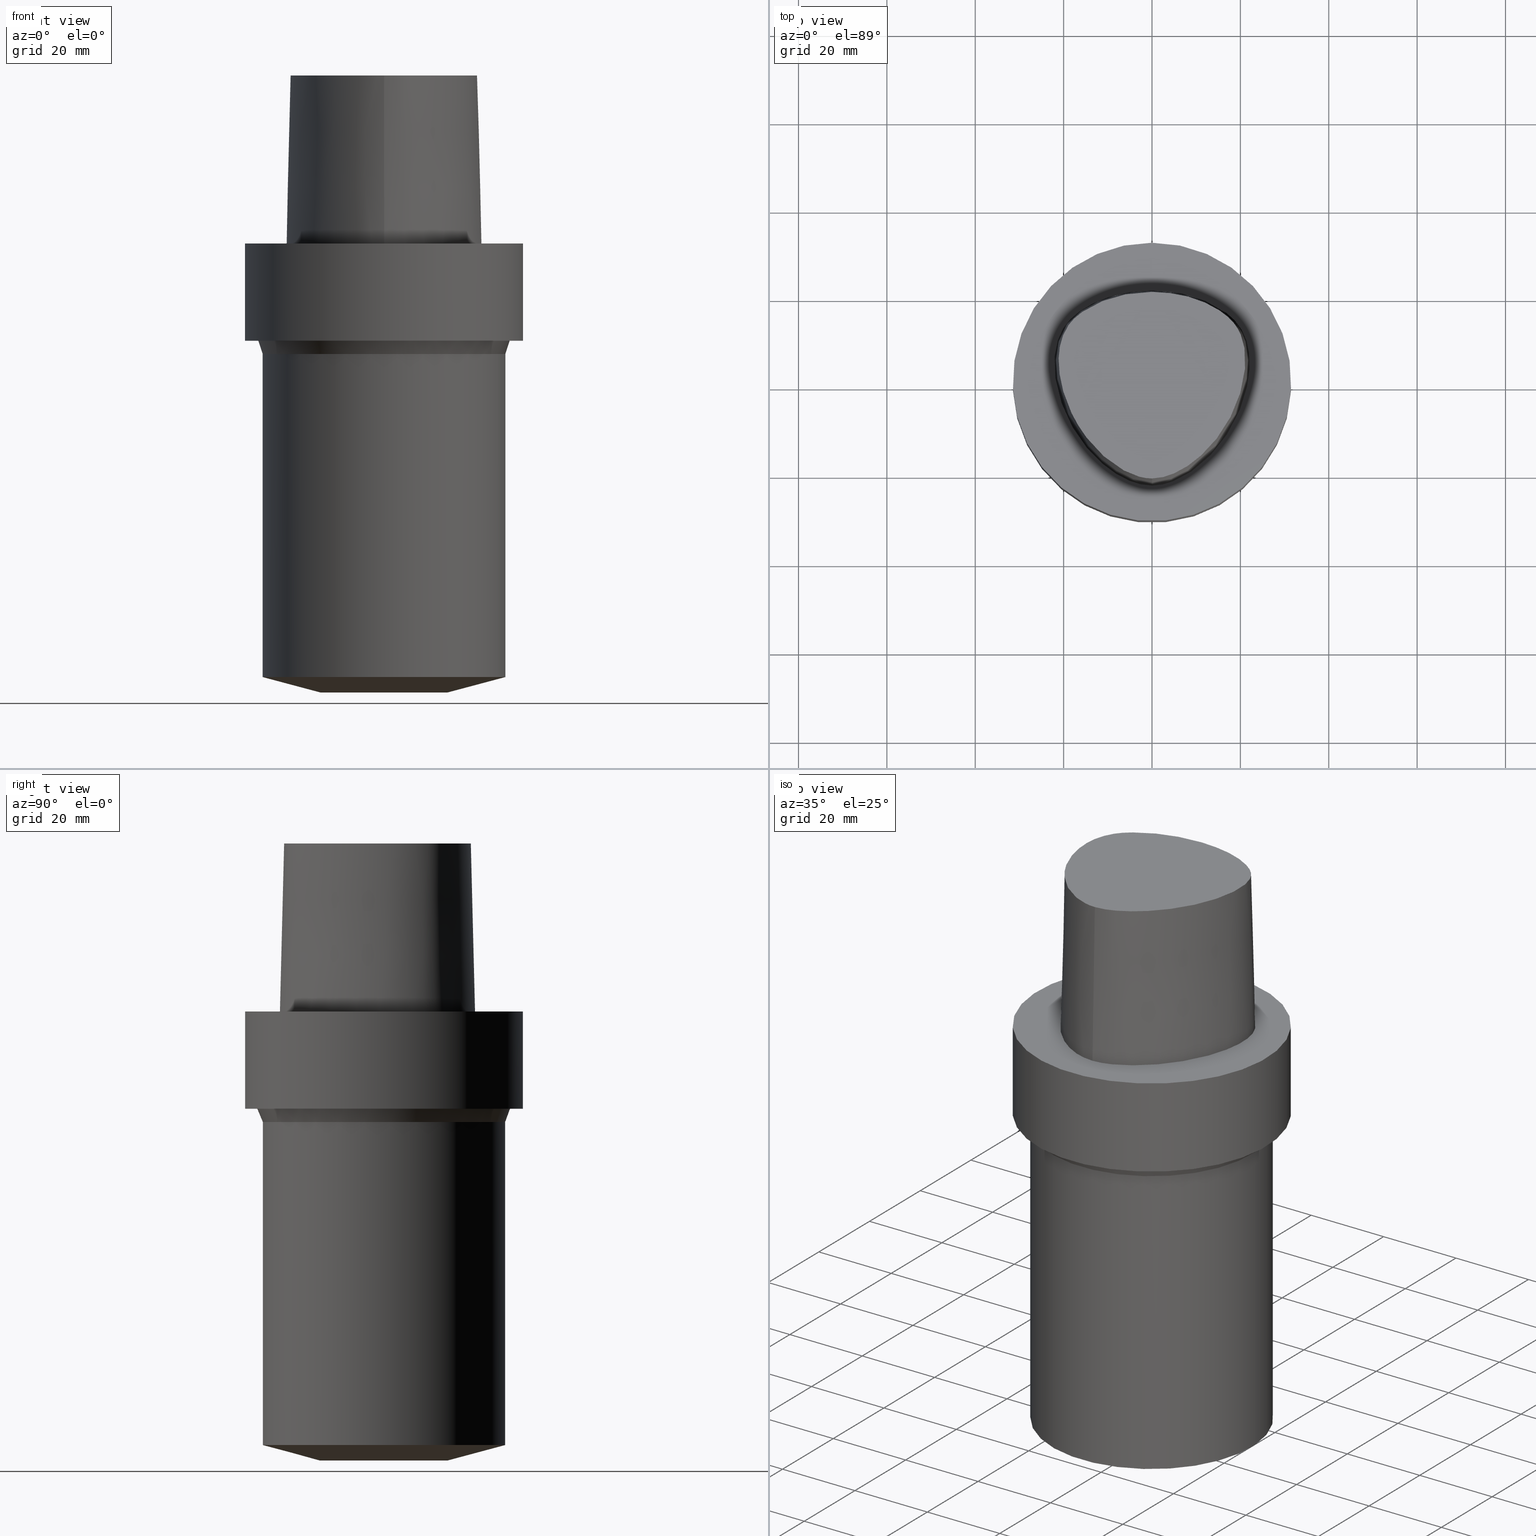
[diagram: canonical four-view strip — front | top / right | iso, engineering-drawing reading convention]
A machine part, canonical four-view strip (front | top / right | iso — engineering-drawing reading convention). The complete STEP part file that produces these views, byte-faithful:
ISO-10303-21;
HEADER;
FILE_DESCRIPTION((''),'1');
FILE_NAME('V:/01_Dxf_Field-HP\X2\FF71FF6FFF8CFF9F5916\X0\2013/BIGKAISER\X2\FF76FF80FF9BFF78FF9E63B28F095206\X0\_BKUS_201803/C6-BSL/C6-BSL1.000-4.stp','2018-03-14T07:39:59',(''),(''),'Spatial Interop R21 SP3','Kubotek KeyCreator 2011 V10.0.2 (22737)',' ');
FILE_SCHEMA(('automotive_design'));
ENDSEC;
DATA;
#1=MECHANICAL_DESIGN_GEOMETRIC_PRESENTATION_REPRESENTATION(' ',(#10,#11,#12,#13,#14,#15,#16,#17,#18,#19,#20,#21,#22,#23,#24,#25,#26,#27,#28,#29,#30,#31,#32,#33,#34,#35),#6);
#2=PRODUCT_DEFINITION_CONTEXT('',#36,'design');
#3=APPLICATION_PROTOCOL_DEFINITION('INTERNATIONAL STANDARD','automotive_design',1994,#36);
#4=PRODUCT_CATEGORY_RELATIONSHIP('NONE','NONE',#37,#38);
#5=SHAPE_DEFINITION_REPRESENTATION(#39,#40);
#6= (GEOMETRIC_REPRESENTATION_CONTEXT(3)GLOBAL_UNCERTAINTY_ASSIGNED_CONTEXT((#43))GLOBAL_UNIT_ASSIGNED_CONTEXT((#45,#46,#47))REPRESENTATION_CONTEXT('NONE','WORKSPACE'));
#10=STYLED_ITEM('',(#49,#50),#51);
#11=STYLED_ITEM('',(#52,#53),#54);
#12=STYLED_ITEM('',(#55,#56),#57);
#13=STYLED_ITEM('',(#58,#59),#60);
#14=STYLED_ITEM('',(#61),#62);
#15=STYLED_ITEM('',(#63),#64);
#16=STYLED_ITEM('',(#65),#66);
#17=STYLED_ITEM('',(#67,#68),#69);
#18=STYLED_ITEM('',(#70,#71),#72);
#19=STYLED_ITEM('',(#73,#74),#75);
#20=STYLED_ITEM('',(#76,#77),#78);
#21=STYLED_ITEM('',(#79,#80),#81);
#22=STYLED_ITEM('',(#82),#83);
#23=STYLED_ITEM('',(#84),#85);
#24=STYLED_ITEM('',(#86),#87);
#25=STYLED_ITEM('',(#88),#89);
#26=STYLED_ITEM('',(#90),#91);
#27=STYLED_ITEM('',(#92),#93);
#28=STYLED_ITEM('',(#94),#95);
#29=STYLED_ITEM('',(#96),#97);
#30=STYLED_ITEM('',(#98,#99),#100);
#31=STYLED_ITEM('',(#101,#102),#103);
#32=STYLED_ITEM('',(#104),#105);
#33=STYLED_ITEM('',(#106,#107),#108);
#34=STYLED_ITEM('',(#109),#110);
#35=STYLED_ITEM('',(#111),#112);
#36=APPLICATION_CONTEXT(' ');
#37=PRODUCT_CATEGORY('part','NONE');
#38=PRODUCT_RELATED_PRODUCT_CATEGORY('detail',' ',(#113));
#39=PRODUCT_DEFINITION_SHAPE('NONE','NONE',#114);
#40=ADVANCED_BREP_SHAPE_REPRESENTATION('Unnamed[1]',(#78,#115),#6);
#43=UNCERTAINTY_MEASURE_WITH_UNIT(LENGTH_MEASURE(1.0E-006),#45,'','');
#45= (CONVERSION_BASED_UNIT('MILLIMETRE',#118)LENGTH_UNIT()NAMED_UNIT(#121));
#46= (NAMED_UNIT(#123)PLANE_ANGLE_UNIT()SI_UNIT($,.RADIAN.));
#47= (NAMED_UNIT(#123)SOLID_ANGLE_UNIT()SI_UNIT($,.STERADIAN.));
#49=PRESENTATION_STYLE_ASSIGNMENT((#129));
#50=PRESENTATION_STYLE_ASSIGNMENT((#130));
#51=ADVANCED_FACE('Unnamed[1]',(#131,#132),#133,.T.);
#52=PRESENTATION_STYLE_ASSIGNMENT((#134));
#53=PRESENTATION_STYLE_ASSIGNMENT((#135));
#54=ADVANCED_FACE('Unnamed[1]',(#136),#137,.T.);
#55=PRESENTATION_STYLE_ASSIGNMENT((#138));
#56=PRESENTATION_STYLE_ASSIGNMENT((#139));
#57=ADVANCED_FACE('Unnamed[1]',(#140,#141),#142,.T.);
#58=PRESENTATION_STYLE_ASSIGNMENT((#143));
#59=PRESENTATION_STYLE_ASSIGNMENT((#144));
#60=ADVANCED_FACE('Unnamed[1]',(#145,#146),#147,.T.);
#61=PRESENTATION_STYLE_ASSIGNMENT((#148));
#62=EDGE_CURVE('Unnamed[1]',#149,#149,#150,.T.);
#63=PRESENTATION_STYLE_ASSIGNMENT((#151));
#64=EDGE_CURVE('Unnamed[1]',#152,#153,#154,.T.);
#65=PRESENTATION_STYLE_ASSIGNMENT((#155));
#66=EDGE_CURVE('Unnamed[1]',#156,#157,#158,.T.);
#67=PRESENTATION_STYLE_ASSIGNMENT((#159));
#68=PRESENTATION_STYLE_ASSIGNMENT((#160));
#69=ADVANCED_FACE('Unnamed[1]',(#161),#162,.T.);
#70=PRESENTATION_STYLE_ASSIGNMENT((#163));
#71=PRESENTATION_STYLE_ASSIGNMENT((#164));
#72=ADVANCED_FACE('Unnamed[1]',(#165,#166),#167,.T.);
#73=PRESENTATION_STYLE_ASSIGNMENT((#168));
#74=PRESENTATION_STYLE_ASSIGNMENT((#169));
#75=ADVANCED_FACE('Unnamed[1]',(#170),#171,.T.);
#76=PRESENTATION_STYLE_ASSIGNMENT((#172));
#77=PRESENTATION_STYLE_ASSIGNMENT((#173));
#78=MANIFOLD_SOLID_BREP('Unnamed[1]',#174);
#79=PRESENTATION_STYLE_ASSIGNMENT((#175));
#80=PRESENTATION_STYLE_ASSIGNMENT((#176));
#81=ADVANCED_FACE('Unnamed[1]',(#177,#178),#179,.T.);
#82=PRESENTATION_STYLE_ASSIGNMENT((#180));
#83=EDGE_CURVE('Unnamed[1]',#181,#157,#182,.T.);
#84=PRESENTATION_STYLE_ASSIGNMENT((#183));
#85=EDGE_CURVE('Unnamed[1]',#184,#184,#185,.T.);
#86=PRESENTATION_STYLE_ASSIGNMENT((#186));
#87=EDGE_CURVE('Unnamed[1]',#187,#187,#188,.T.);
#88=PRESENTATION_STYLE_ASSIGNMENT((#189));
#89=EDGE_CURVE('Unnamed[1]',#152,#156,#190,.T.);
#90=PRESENTATION_STYLE_ASSIGNMENT((#191));
#91=EDGE_CURVE('Unnamed[1]',#156,#152,#192,.T.);
#92=PRESENTATION_STYLE_ASSIGNMENT((#193));
#93=EDGE_CURVE('Unnamed[1]',#194,#194,#195,.T.);
#94=PRESENTATION_STYLE_ASSIGNMENT((#196));
#95=EDGE_CURVE('Unnamed[1]',#197,#197,#198,.T.);
#96=PRESENTATION_STYLE_ASSIGNMENT((#199));
#97=EDGE_CURVE('Unnamed[1]',#156,#181,#200,.T.);
#98=PRESENTATION_STYLE_ASSIGNMENT((#201));
#99=PRESENTATION_STYLE_ASSIGNMENT((#202));
#100=ADVANCED_FACE('Unnamed[1]',(#203),#204,.T.);
#101=PRESENTATION_STYLE_ASSIGNMENT((#205));
#102=PRESENTATION_STYLE_ASSIGNMENT((#206));
#103=ADVANCED_FACE('Unnamed[1]',(#207,#208),#209,.T.);
#104=PRESENTATION_STYLE_ASSIGNMENT((#210));
#105=EDGE_CURVE('Unnamed[1]',#153,#181,#211,.T.);
#106=PRESENTATION_STYLE_ASSIGNMENT((#212));
#107=PRESENTATION_STYLE_ASSIGNMENT((#213));
#108=ADVANCED_FACE('Unnamed[1]',(#214),#215,.T.);
#109=PRESENTATION_STYLE_ASSIGNMENT((#216));
#110=EDGE_CURVE('Unnamed[1]',#157,#153,#217,.T.);
#111=PRESENTATION_STYLE_ASSIGNMENT((#218));
#112=EDGE_CURVE('Unnamed[1]',#219,#219,#220,.T.);
#113=PRODUCT('Unnamed[1]','Unnamed[1]','PART-Unnamed[1]-DESC',(#221));
#114=PRODUCT_DEFINITION('NONE','NONE',#222,#2);
#115=AXIS2_PLACEMENT_3D('',#223,#224,#225);
#118=LENGTH_MEASURE_WITH_UNIT(LENGTH_MEASURE(1.0),#226);
#121=DIMENSIONAL_EXPONENTS(1.0,0.0,0.0,0.0,0.0,0.0,0.0);
#123=DIMENSIONAL_EXPONENTS(0.0,0.0,0.0,0.0,0.0,0.0,0.0);
#129=SURFACE_STYLE_USAGE(.BOTH.,#227);
#130=CURVE_STYLE('',#228,POSITIVE_LENGTH_MEASURE(1000.0),#229);
#131=FACE_BOUND('',#230,.T.);
#132=FACE_OUTER_BOUND('',#231,.T.);
#133=PLANE('',#232);
#134=SURFACE_STYLE_USAGE(.BOTH.,#233);
#135=CURVE_STYLE('',#234,POSITIVE_LENGTH_MEASURE(1000.0),#235);
#136=FACE_OUTER_BOUND('',#236,.T.);
#137=CONICAL_SURFACE('',#237,1.0,0.0249931148600041);
#138=SURFACE_STYLE_USAGE(.BOTH.,#238);
#139=CURVE_STYLE('',#239,POSITIVE_LENGTH_MEASURE(1000.0),#240);
#140=FACE_BOUND('',#241,.T.);
#141=FACE_OUTER_BOUND('',#242,.T.);
#142=PLANE('',#243);
#143=SURFACE_STYLE_USAGE(.BOTH.,#244);
#144=CURVE_STYLE('',#245,POSITIVE_LENGTH_MEASURE(1000.0),#246);
#145=FACE_BOUND('',#247,.T.);
#146=FACE_BOUND('',#248,.T.);
#147=CYLINDRICAL_SURFACE('',#249,31.4999999999998);
#148=CURVE_STYLE('',#250,POSITIVE_LENGTH_MEASURE(1000.0),#251);
#149=VERTEX_POINT('',#252);
#150=CIRCLE('',#253,31.4999999999998);
#151=CURVE_STYLE('',#254,POSITIVE_LENGTH_MEASURE(1000.0),#255);
#152=VERTEX_POINT('',#256);
#153=VERTEX_POINT('',#257);
#154=LINE('',#258,#259);
#155=CURVE_STYLE('',#260,POSITIVE_LENGTH_MEASURE(1000.0),#261);
#156=VERTEX_POINT('',#262);
#157=VERTEX_POINT('',#263);
#158=LINE('',#264,#265);
#159=SURFACE_STYLE_USAGE(.BOTH.,#266);
#160=CURVE_STYLE('',#267,POSITIVE_LENGTH_MEASURE(1000.0),#268);
#161=FACE_OUTER_BOUND('',#269,.T.);
#162=PLANE('',#270);
#163=SURFACE_STYLE_USAGE(.BOTH.,#271);
#164=CURVE_STYLE('',#272,POSITIVE_LENGTH_MEASURE(1000.0),#273);
#165=FACE_BOUND('',#274,.T.);
#166=FACE_BOUND('',#275,.T.);
#167=CONICAL_SURFACE('',#276,20.9999999999664,1.30899693899575);
#168=SURFACE_STYLE_USAGE(.BOTH.,#277);
#169=CURVE_STYLE('',#278,POSITIVE_LENGTH_MEASURE(1000.0),#279);
#170=FACE_OUTER_BOUND('',#280,.T.);
#171=B_SPLINE_SURFACE_WITH_KNOTS('',3,3,((#281,#282,#283,#284),(#285,#286,#287,#288),(#289,#290,#291,#292),(#293,#294,#295,#296),(#297,#298,#299,#300),(#301,#302,#303,#304),(#305,#306,#307,#308),(#309,#310,#311,#312),(#313,#314,#315,#316),(#317,#318,#319,#320),(#321,#322,#323,#324),(#325,#326,#327,#328),(#329,#330,#331,#332),(#333,#334,#335,#336),(#337,#338,#339,#340),(#341,#342,#343,#344),(#345,#346,#347,#348),(#349,#350,#351,#352)),.UNSPECIFIED.,.F.,.F.,.F.,(4,1,1,1,1,1,1,1,1,2,1,1,1,1,4),(4,4),(-6.6151339308743,-6.20168806019465,-5.78824218951501,-5.37479631883537,-4.96135044815572,-4.13445870679644,-3.30756696543715,-2.89412109475751,-2.48067522407786,-2.06722935339822,-1.65378348271857,-1.24033761203893,-0.826891741359287,-0.413445870679644,0.0),(-3.8,0.0),.UNSPECIFIED.);
#172=SURFACE_STYLE_USAGE(.BOTH.,#353);
#173=CURVE_STYLE('',#354,POSITIVE_LENGTH_MEASURE(1000.0),#355);
#174=CLOSED_SHELL('',(#108,#75,#54,#69,#57,#60,#51,#103,#81,#72,#100));
#175=SURFACE_STYLE_USAGE(.BOTH.,#356);
#176=CURVE_STYLE('',#357,POSITIVE_LENGTH_MEASURE(1000.0),#358);
#177=FACE_BOUND('',#359,.T.);
#178=FACE_BOUND('',#360,.T.);
#179=CYLINDRICAL_SURFACE('',#361,27.4999999999647);
#180=CURVE_STYLE('',#362,POSITIVE_LENGTH_MEASURE(1000.0),#363);
#181=VERTEX_POINT('',#364);
#182=CIRCLE('',#365,0.949936168436318);
#183=CURVE_STYLE('',#366,POSITIVE_LENGTH_MEASURE(1000.0),#367);
#184=VERTEX_POINT('',#368);
#185=CIRCLE('',#369,31.4999999999998);
#186=CURVE_STYLE('',#370,POSITIVE_LENGTH_MEASURE(1000.0),#371);
#187=VERTEX_POINT('',#372);
#188=CIRCLE('',#373,14.5000000000006);
#189=CURVE_STYLE('',#374,POSITIVE_LENGTH_MEASURE(1000.0),#375);
#190=B_SPLINE_CURVE_WITH_KNOTS('',3,(#376,#377,#378,#379,#380,#381,#382,#383,#384,#385,#386,#387,#388,#389,#390,#391),.UNSPECIFIED.,.F.,.F.,(4,1,1,1,1,1,1,1,1,1,1,1,1,4),(6.61513393087476,6.99917207152274,7.48193246986995,7.96289324787093,8.45540287038584,9.10291653679981,9.67129810936083,10.1618749681153,10.6358867802489,11.1080734988593,11.6043706019633,12.09451993853,12.6985979284494,13.2302678617486),.UNSPECIFIED.);
#191=CURVE_STYLE('',#392,POSITIVE_LENGTH_MEASURE(1000.0),#393);
#192=B_SPLINE_CURVE_WITH_KNOTS('',3,(#394,#395,#396,#397,#398,#399,#400,#401,#402,#403,#404,#405,#406,#407,#408,#409),.UNSPECIFIED.,.F.,.F.,(4,1,1,1,1,1,1,1,1,1,1,1,1,4),(0.0,0.447924670568964,0.9388024242536,1.50591409090711,2.07314340012323,2.72424957442464,3.2253501842849,3.80982102049476,4.34867996267067,4.85900173381144,5.37972031856977,6.03459825488646,6.61113557741484,6.61513393087395),.UNSPECIFIED.);
#193=CURVE_STYLE('',#410,POSITIVE_LENGTH_MEASURE(1000.0),#411);
#194=VERTEX_POINT('',#412);
#195=CIRCLE('',#413,28.5919107027961);
#196=CURVE_STYLE('',#414,POSITIVE_LENGTH_MEASURE(1000.0),#415);
#197=VERTEX_POINT('',#416);
#198=CIRCLE('',#417,27.499999999997);
#199=CURVE_STYLE('',#418,POSITIVE_LENGTH_MEASURE(1000.0),#419);
#200=LINE('',#420,#421);
#201=SURFACE_STYLE_USAGE(.BOTH.,#422);
#202=CURVE_STYLE('',#423,POSITIVE_LENGTH_MEASURE(1000.0),#424);
#203=FACE_OUTER_BOUND('',#425,.T.);
#204=PLANE('',#426);
#205=SURFACE_STYLE_USAGE(.BOTH.,#427);
#206=CURVE_STYLE('',#428,POSITIVE_LENGTH_MEASURE(1000.0),#429);
#207=FACE_BOUND('',#430,.T.);
#208=FACE_BOUND('',#431,.T.);
#209=CONICAL_SURFACE('',#432,28.0459553513966,0.349065850398867);
#210=CURVE_STYLE('',#433,POSITIVE_LENGTH_MEASURE(1000.0),#434);
#211=B_SPLINE_CURVE_WITH_KNOTS('',3,(#435,#436,#437,#438,#439,#440,#441,#442,#443,#444,#445,#446,#447,#448,#449,#450,#451,#452),.UNSPECIFIED.,.F.,.F.,(4,1,1,1,1,1,1,1,1,2,1,1,1,1,4),(-6.6151339308743,-6.20168806019465,-5.78824218951501,-5.37479631883537,-4.96135044815572,-4.13445870679644,-3.30756696543715,-2.89412109475751,-2.48067522407786,-2.06722935339822,-1.65378348271857,-1.24033761203893,-0.826891741359287,-0.413445870679644,0.0),.UNSPECIFIED.);
#212=SURFACE_STYLE_USAGE(.BOTH.,#453);
#213=CURVE_STYLE('',#454,POSITIVE_LENGTH_MEASURE(1000.0),#455);
#214=FACE_OUTER_BOUND('',#456,.T.);
#215=B_SPLINE_SURFACE_WITH_KNOTS('',3,3,((#457,#458,#459,#460),(#461,#462,#463,#464),(#465,#466,#467,#468),(#469,#470,#471,#472),(#473,#474,#475,#476),(#477,#478,#479,#480),(#481,#482,#483,#484),(#485,#486,#487,#488),(#489,#490,#491,#492),(#493,#494,#495,#496),(#497,#498,#499,#500),(#501,#502,#503,#504),(#505,#506,#507,#508),(#509,#510,#511,#512),(#513,#514,#515,#516),(#517,#518,#519,#520),(#521,#522,#523,#524)),.UNSPECIFIED.,.F.,.F.,.F.,(4,1,1,1,1,1,1,1,1,1,1,1,1,1,4),(4,4),(-13.2302678617486,-12.816821991069,-12.4033761203893,-11.9899302497097,-11.57648437903,-11.1630385083504,-10.9563155730106,-10.7495926376707,-10.3361467669911,-9.92270089631145,-9.09580915495216,-8.26891741359287,-7.44202567223358,-7.02857980155394,-6.6151339308743),(-3.8,0.0),.UNSPECIFIED.);
#216=CURVE_STYLE('',#525,POSITIVE_LENGTH_MEASURE(1000.0),#526);
#217=B_SPLINE_CURVE_WITH_KNOTS('',3,(#527,#528,#529,#530,#531,#532,#533,#534,#535,#536,#537,#538,#539,#540,#541,#542,#543),.UNSPECIFIED.,.F.,.F.,(4,1,1,1,1,1,1,1,1,1,1,1,1,1,4),(-13.2302678617486,-12.816821991069,-12.4033761203893,-11.9899302497097,-11.57648437903,-11.1630385083504,-10.9563155730106,-10.7495926376707,-10.3361467669911,-9.92270089631145,-9.09580915495216,-8.26891741359287,-7.44202567223358,-7.02857980155394,-6.6151339308743),.UNSPECIFIED.);
#218=CURVE_STYLE('',#544,POSITIVE_LENGTH_MEASURE(1000.0),#545);
#219=VERTEX_POINT('',#546);
#220=CIRCLE('',#547,27.4999999999323);
#221=PRODUCT_CONTEXT('',#36,'mechanical');
#222=PRODUCT_DEFINITION_FORMATION_WITH_SPECIFIED_SOURCE(' ','NONE',#113,.NOT_KNOWN.);
#223=CARTESIAN_POINT('',(0.0,0.0,0.0));
#224=DIRECTION('',(0.0,0.0,1.0));
#225=DIRECTION('',(1.0,0.0,0.0));
#226= (NAMED_UNIT(#121)LENGTH_UNIT()SI_UNIT(.MILLI.,.METRE.));
#227=SURFACE_SIDE_STYLE('',(#549));
#228=DRAUGHTING_PRE_DEFINED_CURVE_FONT('continuous');
#229=COLOUR_RGB('',0.0,1.0,0.0);
#230=EDGE_LOOP('',(#550));
#231=EDGE_LOOP('',(#551));
#232=AXIS2_PLACEMENT_3D('',#552,#553,#554);
#233=SURFACE_SIDE_STYLE('',(#555));
#234=DRAUGHTING_PRE_DEFINED_CURVE_FONT('continuous');
#235=COLOUR_RGB('',0.0,1.0,0.0);
#236=EDGE_LOOP('',(#556,#557,#558));
#237=AXIS2_PLACEMENT_3D('',#559,#560,#561);
#238=SURFACE_SIDE_STYLE('',(#562));
#239=DRAUGHTING_PRE_DEFINED_CURVE_FONT('continuous');
#240=COLOUR_RGB('',0.0,1.0,0.0);
#241=EDGE_LOOP('',(#563,#564,#565));
#242=EDGE_LOOP('',(#566));
#243=AXIS2_PLACEMENT_3D('',#567,#568,#569);
#244=SURFACE_SIDE_STYLE('',(#570));
#245=DRAUGHTING_PRE_DEFINED_CURVE_FONT('continuous');
#246=COLOUR_RGB('',0.0,1.0,0.0);
#247=EDGE_LOOP('',(#571));
#248=EDGE_LOOP('',(#572));
#249=AXIS2_PLACEMENT_3D('',#573,#574,#575);
#250=DRAUGHTING_PRE_DEFINED_CURVE_FONT('continuous');
#251=COLOUR_RGB('',0.0,1.0,0.0);
#252=CARTESIAN_POINT('',(1.34711147906209E-015,31.5,-22.0));
#253=AXIS2_PLACEMENT_3D('',#576,#577,#578);
#254=DRAUGHTING_PRE_DEFINED_CURVE_FONT('continuous');
#255=COLOUR_RGB('',0.0,1.0,0.0);
#256=CARTESIAN_POINT('',(0.038736923393866,-22.5191997536361,38.0));
#257=CARTESIAN_POINT('',(0.04359356758149,-23.4691235068931,7.78075697532443E-032));
#258=CARTESIAN_POINT('',(0.038736923393866,-22.5191997536361,38.0));
#259=VECTOR('',#579,38.0118715498723);
#260=DRAUGHTING_PRE_DEFINED_CURVE_FONT('continuous');
#261=COLOUR_RGB('',0.0,1.0,0.0);
#262=CARTESIAN_POINT('',(-0.001218547003662,19.7276821925089,38.0));
#263=CARTESIAN_POINT('',(0.044682985379347,20.6765087343109,1.61778115328528E-031));
#264=CARTESIAN_POINT('',(-0.001218547003662,19.7276821925089,38.0));
#265=VECTOR('',#580,38.0118715503078);
#266=SURFACE_SIDE_STYLE('',(#581));
#267=DRAUGHTING_PRE_DEFINED_CURVE_FONT('continuous');
#268=COLOUR_RGB('',0.0,1.0,0.0);
#269=EDGE_LOOP('',(#582,#583));
#270=AXIS2_PLACEMENT_3D('',#584,#585,#586);
#271=SURFACE_SIDE_STYLE('',(#587));
#272=DRAUGHTING_PRE_DEFINED_CURVE_FONT('continuous');
#273=COLOUR_RGB('',0.0,1.0,0.0);
#274=EDGE_LOOP('',(#588));
#275=EDGE_LOOP('',(#589));
#276=AXIS2_PLACEMENT_3D('',#590,#591,#592);
#277=SURFACE_SIDE_STYLE('',(#593));
#278=DRAUGHTING_PRE_DEFINED_CURVE_FONT('continuous');
#279=COLOUR_RGB('',0.0,1.0,0.0);
#280=EDGE_LOOP('',(#594,#595,#596,#597));
#281=CARTESIAN_POINT('',(0.038736923393866,-22.5191997536361,38.0));
#282=CARTESIAN_POINT('',(0.04035580478973,-22.8358410047159,25.3333333333066));
#283=CARTESIAN_POINT('',(0.041974686185626,-23.1524822558133,12.6666666666934));
#284=CARTESIAN_POINT('',(0.04359356758149,-23.4691235068931,7.78075697532443E-032));
#285=CARTESIAN_POINT('',(-1.33786123484754,-22.5261650259856,38.0));
#286=CARTESIAN_POINT('',(-1.38240731367927,-22.8430399310626,25.3333333333066));
#287=CARTESIAN_POINT('',(-1.42695339249092,-23.1599147815484,12.6666666666934));
#288=CARTESIAN_POINT('',(-1.4714994713963,-23.4767895315797,2.46519032881566E-032));
#289=CARTESIAN_POINT('',(-4.08909358431842,-21.9268839879558,38.0));
#290=CARTESIAN_POINT('',(-4.20580731135515,-22.2249725500078,25.3333333333066));
#291=CARTESIAN_POINT('',(-4.32252104640446,-22.5230611651922,12.6666666666934));
#292=CARTESIAN_POINT('',(-4.43923476371401,-22.821149804767,-4.93038065763132E-032));
#293=CARTESIAN_POINT('',(-7.8333083619947,-19.9973514861616,38.0));
#294=CARTESIAN_POINT('',(-8.00568301809614,-20.2649260859405,25.3333333333066));
#295=CARTESIAN_POINT('',(-8.1780576640789,-20.532500564315,12.6666666666934));
#296=CARTESIAN_POINT('',(-8.35043230079961,-20.8000751253325,-9.86076131526265E-032));
#297=CARTESIAN_POINT('',(-11.1035071147626,-17.450554957873,38.0));
#298=CARTESIAN_POINT('',(-11.3173048160562,-17.6855739222454,25.3333333333066));
#299=CARTESIAN_POINT('',(-11.5311025116181,-17.9205928617968,12.6666666666934));
#300=CARTESIAN_POINT('',(-11.744900222602,-18.1556117874078,-1.97215226305253E-031));
#301=CARTESIAN_POINT('',(-14.9379535189057,-13.461132049697,38.0));
#302=CARTESIAN_POINT('',(-15.191622410671,-13.6542981711372,25.3333333333066));
#303=CARTESIAN_POINT('',(-15.4452913389853,-13.8474645327131,12.6666666666934));
#304=CARTESIAN_POINT('',(-15.6989602501314,-14.0406306929147,-1.97215226305253E-031));
#305=CARTESIAN_POINT('',(-18.6681263017223,-7.59391757463204,38.0));
#306=CARTESIAN_POINT('',(-18.9571800800711,-7.73136168081928,25.3333333333066));
#307=CARTESIAN_POINT('',(-19.2462337287194,-7.86880572399774,12.6666666666934));
#308=CARTESIAN_POINT('',(-19.5352875070682,-8.00624990770787,1.97215226305253E-031));
#309=CARTESIAN_POINT('',(-20.7857899858339,-0.952862819790525,38.0));
#310=CARTESIAN_POINT('',(-21.0973808305434,-1.02218087467418,25.3333333333066));
#311=CARTESIAN_POINT('',(-21.408971677436,-1.09149899580772,12.6666666666934));
#312=CARTESIAN_POINT('',(-21.7205626190491,-1.16081708945282,0.0));
#313=CARTESIAN_POINT('',(-21.2911760556836,4.5469215763113,38.0));
#314=CARTESIAN_POINT('',(-21.610337904926,4.54783292082248,25.3333333333066));
#315=CARTESIAN_POINT('',(-21.9294998290918,4.54874426225691,12.6666666666934));
#316=CARTESIAN_POINT('',(-22.2486616783342,4.54965558738736,0.0));
#317=CARTESIAN_POINT('',(-20.7345309521958,8.74909381391006,38.0));
#318=CARTESIAN_POINT('',(-21.0445680426217,8.83349432450556,25.3333333333066));
#319=CARTESIAN_POINT('',(-21.3546050933631,8.91789488065068,12.6666666666934));
#320=CARTESIAN_POINT('',(-21.6646421256468,9.00229539124618,0.0));
#321=CARTESIAN_POINT('',(-19.5531512296439,11.3174844040833,38.0));
#322=CARTESIAN_POINT('',(-19.8336219699984,11.4710077674213,25.3333333333066));
#323=CARTESIAN_POINT('',(-20.1140927680763,11.6245311337623,12.6666666666934));
#324=CARTESIAN_POINT('',(-20.3945635471922,11.7780544971003,0.0));
#325=CARTESIAN_POINT('',(-17.9100913688793,13.524027510437,38.0));
#326=CARTESIAN_POINT('',(-18.1375785458768,13.7487051053655,25.3333333333066));
#327=CARTESIAN_POINT('',(-18.365065665211,13.9733826973296,12.6666666666934));
#328=CARTESIAN_POINT('',(-18.5925528034471,14.1980602922581,0.0));
#329=CARTESIAN_POINT('',(-15.7996349656398,15.3762170634413,38.0));
#330=CARTESIAN_POINT('',(-15.9739761051783,15.6434029846179,25.3333333333066));
#331=CARTESIAN_POINT('',(-16.1483172726872,15.9105889315134,12.6666666666934));
#332=CARTESIAN_POINT('',(-16.3226584122258,16.1777748720707,0.0));
#333=CARTESIAN_POINT('',(-12.1175640002064,17.3825162484012,38.0));
#334=CARTESIAN_POINT('',(-12.2475895903055,17.6724842099619,25.3333333333066));
#335=CARTESIAN_POINT('',(-12.3776152070492,17.9624521925696,12.6666666666934));
#336=CARTESIAN_POINT('',(-12.5076407874579,18.2524201541303,9.86076131526265E-032));
#337=CARTESIAN_POINT('',(-8.21761151654222,18.7588585989994,38.0));
#338=CARTESIAN_POINT('',(-8.30099497910627,19.0656105427881,25.3333333333066));
#339=CARTESIAN_POINT('',(-8.38437843913309,19.3723624535439,12.6666666666934));
#340=CARTESIAN_POINT('',(-8.46776192107786,19.679114377952,9.86076131526265E-032));
#341=CARTESIAN_POINT('',(-4.13466093881225,19.5396850837055,38.0));
#342=CARTESIAN_POINT('',(-4.16658562115465,19.8557172636973,25.3333333333066));
#343=CARTESIAN_POINT('',(-4.19851029939059,20.1717494367229,12.6666666666934));
#344=CARTESIAN_POINT('',(-4.23043497193604,20.487781597334,1.97215226305253E-031));
#345=CARTESIAN_POINT('',(-1.37917220403684,19.6638560588908,38.0));
#346=CARTESIAN_POINT('',(-1.39382511685176,19.98016223565,25.3333333333066));
#347=CARTESIAN_POINT('',(-1.40847802945569,20.296468399885,12.6666666666934));
#348=CARTESIAN_POINT('',(-1.42313094248379,20.6127745766442,1.10933564796705E-031));
#349=CARTESIAN_POINT('',(-0.001218547003662,19.7276821925089,38.0));
#350=CARTESIAN_POINT('',(-0.015869696232855,20.043988446791,25.3333333333066));
#351=CARTESIAN_POINT('',(-0.030520845462092,20.3602947010464,12.6666666666934));
#352=CARTESIAN_POINT('',(-0.045171994691285,20.6766009553285,1.6755590516169E-031));
#353=SURFACE_SIDE_STYLE('',(#598));
#354=DRAUGHTING_PRE_DEFINED_CURVE_FONT('continuous');
#355=COLOUR_RGB('',0.0,1.0,0.0);
#356=SURFACE_SIDE_STYLE('',(#599));
#357=DRAUGHTING_PRE_DEFINED_CURVE_FONT('continuous');
#358=COLOUR_RGB('',0.0,1.0,0.0);
#359=EDGE_LOOP('',(#600));
#360=EDGE_LOOP('',(#601));
#361=AXIS2_PLACEMENT_3D('',#602,#603,#604);
#362=DRAUGHTING_PRE_DEFINED_CURVE_FONT('continuous');
#363=COLOUR_RGB('',0.0,1.0,0.0);
#364=CARTESIAN_POINT('',(-0.045171994691285,20.6766009553285,1.6755590516169E-031));
#365=AXIS2_PLACEMENT_3D('',#605,#606,#607);
#366=DRAUGHTING_PRE_DEFINED_CURVE_FONT('continuous');
#367=COLOUR_RGB('',0.0,1.0,0.0);
#368=CARTESIAN_POINT('',(-3.88267476788467E-031,31.5,3.85763741731416E-015));
#369=AXIS2_PLACEMENT_3D('',#608,#609,#610);
#370=DRAUGHTING_PRE_DEFINED_CURVE_FONT('continuous');
#371=COLOUR_RGB('',0.0,1.0,0.0);
#372=CARTESIAN_POINT('',(6.22120573966855E-015,14.5000000000008,-101.6));
#373=AXIS2_PLACEMENT_3D('',#611,#612,#613);
#374=DRAUGHTING_PRE_DEFINED_CURVE_FONT('continuous');
#375=COLOUR_RGB('',0.0,1.0,0.0);
#376=CARTESIAN_POINT('',(0.038736923394311,-22.519199753636,38.0));
#377=CARTESIAN_POINT('',(1.31742058183662,-22.512662269405,38.0));
#378=CARTESIAN_POINT('',(4.2093773447498,-21.9116226439989,38.0));
#379=CARTESIAN_POINT('',(8.20895504542113,-19.7798683845067,38.0));
#380=CARTESIAN_POINT('',(11.9784633234593,-16.681663904162,38.0));
#381=CARTESIAN_POINT('',(15.5308821579362,-12.5807487594113,38.0));
#382=CARTESIAN_POINT('',(18.4566248438667,-7.64932246015528,38.0));
#383=CARTESIAN_POINT('',(20.4036090752029,-2.27012499825289,38.0));
#384=CARTESIAN_POINT('',(21.2357187429189,2.79891401173156,38.0));
#385=CARTESIAN_POINT('',(21.0811206267748,7.62543090736657,38.0));
#386=CARTESIAN_POINT('',(19.3383577336563,12.2772250726194,38.0));
#387=CARTESIAN_POINT('',(15.5796322014404,15.5799672120682,38.0));
#388=CARTESIAN_POINT('',(10.8392956074438,17.9834601687347,38.0));
#389=CARTESIAN_POINT('',(5.56068045850571,19.4586143858472,38.0));
#390=CARTESIAN_POINT('',(1.77223893711014,19.6418877095654,38.0));
#391=CARTESIAN_POINT('',(-0.001218367817519,19.7276822012873,38.0));
#392=DRAUGHTING_PRE_DEFINED_CURVE_FONT('continuous');
#393=COLOUR_RGB('',0.0,1.0,0.0);
#394=CARTESIAN_POINT('',(-0.001218547003662,19.7276821925089,38.0));
#395=CARTESIAN_POINT('',(-1.49408492138443,19.6585333605309,38.0));
#396=CARTESIAN_POINT('',(-4.62297391420352,19.513604770166,38.0));
#397=CARTESIAN_POINT('',(-9.56160616752212,18.4291575730197,38.0));
#398=CARTESIAN_POINT('',(-14.5427684976927,16.2697452580488,38.0));
#399=CARTESIAN_POINT('',(-19.4315563551602,12.5302108980807,38.0));
#400=CARTESIAN_POINT('',(-21.306358833612,6.76352894547076,38.0));
#401=CARTESIAN_POINT('',(-21.0724946936277,0.957075236984038,38.0));
#402=CARTESIAN_POINT('',(-19.7876470880144,-4.34628503581652,38.0));
#403=CARTESIAN_POINT('',(-17.5396999600095,-9.33314444653089,38.0));
#404=CARTESIAN_POINT('',(-14.645447733857,-13.7185760345629,38.0));
#405=CARTESIAN_POINT('',(-10.7996726536643,-17.856257282137,38.0));
#406=CARTESIAN_POINT('',(-6.00479510196376,-21.2687382067675,38.0));
#407=CARTESIAN_POINT('',(-1.90747171908525,-22.5250621415864,38.0));
#408=CARTESIAN_POINT('',(0.025424107066464,-22.5192678176378,38.0));
#409=CARTESIAN_POINT('',(0.038736923394311,-22.519199753636,38.0));
#410=DRAUGHTING_PRE_DEFINED_CURVE_FONT('continuous');
#411=COLOUR_RGB('',0.0,1.0,0.0);
#412=CARTESIAN_POINT('',(1.34711147906209E-015,28.5919107027963,-22.0));
#413=AXIS2_PLACEMENT_3D('',#614,#615,#616);
#414=DRAUGHTING_PRE_DEFINED_CURVE_FONT('continuous');
#415=COLOUR_RGB('',0.0,1.0,0.0);
#416=CARTESIAN_POINT('',(1.53080849893427E-015,27.4999999999972,-25.0000000000012));
#417=AXIS2_PLACEMENT_3D('',#617,#618,#619);
#418=DRAUGHTING_PRE_DEFINED_CURVE_FONT('continuous');
#419=COLOUR_RGB('',0.0,1.0,0.0);
#420=CARTESIAN_POINT('',(-0.001218547003662,19.7276821925089,38.0));
#421=VECTOR('',#620,38.0118715498723);
#422=SURFACE_SIDE_STYLE('',(#621));
#423=DRAUGHTING_PRE_DEFINED_CURVE_FONT('continuous');
#424=COLOUR_RGB('',0.0,1.0,0.0);
#425=EDGE_LOOP('',(#622));
#426=AXIS2_PLACEMENT_3D('',#623,#624,#625);
#427=SURFACE_SIDE_STYLE('',(#626));
#428=DRAUGHTING_PRE_DEFINED_CURVE_FONT('continuous');
#429=COLOUR_RGB('',0.0,1.0,0.0);
#430=EDGE_LOOP('',(#627));
#431=EDGE_LOOP('',(#628));
#432=AXIS2_PLACEMENT_3D('',#629,#630,#631);
#433=DRAUGHTING_PRE_DEFINED_CURVE_FONT('continuous');
#434=COLOUR_RGB('',0.0,1.0,0.0);
#435=CARTESIAN_POINT('',(0.04359356758149,-23.4691235068931,7.78075697532443E-032));
#436=CARTESIAN_POINT('',(-1.4714994713963,-23.4767895315797,2.46519032881566E-032));
#437=CARTESIAN_POINT('',(-4.43923476371401,-22.821149804767,-4.93038065763132E-032));
#438=CARTESIAN_POINT('',(-8.35043230079961,-20.8000751253325,-9.86076131526265E-032));
#439=CARTESIAN_POINT('',(-11.744900222602,-18.1556117874078,-1.97215226305253E-031));
#440=CARTESIAN_POINT('',(-15.6989602501314,-14.0406306929147,-1.97215226305253E-031));
#441=CARTESIAN_POINT('',(-19.5352875070682,-8.00624990770787,1.97215226305253E-031));
#442=CARTESIAN_POINT('',(-21.7205626190491,-1.16081708945282,0.0));
#443=CARTESIAN_POINT('',(-22.2486616783342,4.54965558738736,0.0));
#444=CARTESIAN_POINT('',(-21.6646421256468,9.00229539124618,0.0));
#445=CARTESIAN_POINT('',(-20.3945635471922,11.7780544971003,0.0));
#446=CARTESIAN_POINT('',(-18.5925528034471,14.1980602922581,0.0));
#447=CARTESIAN_POINT('',(-16.3226584122258,16.1777748720707,0.0));
#448=CARTESIAN_POINT('',(-12.5076407874579,18.2524201541303,9.86076131526265E-032));
#449=CARTESIAN_POINT('',(-8.46776192107786,19.679114377952,9.86076131526265E-032));
#450=CARTESIAN_POINT('',(-4.23043497193604,20.487781597334,1.97215226305253E-031));
#451=CARTESIAN_POINT('',(-1.42313094248379,20.6127745766442,1.10933564796705E-031));
#452=CARTESIAN_POINT('',(-0.045171994691285,20.6766009553285,1.6755590516169E-031));
#453=SURFACE_SIDE_STYLE('',(#632));
#454=DRAUGHTING_PRE_DEFINED_CURVE_FONT('continuous');
#455=COLOUR_RGB('',0.0,1.0,0.0);
#456=EDGE_LOOP('',(#633,#634,#635,#636));
#457=CARTESIAN_POINT('',(-0.001218367817519,19.7276822012873,38.0));
#458=CARTESIAN_POINT('',(0.014082083248157,20.0439577123075,25.3333333333066));
#459=CARTESIAN_POINT('',(0.029382534313671,20.3602332232908,12.6666666666934));
#460=CARTESIAN_POINT('',(0.044682985379347,20.6765087343109,1.61778115328528E-031));
#461=CARTESIAN_POINT('',(1.37788651195108,19.6609652834875,38.0));
#462=CARTESIAN_POINT('',(1.3931885827258,19.9772407169847,25.3333333333066));
#463=CARTESIAN_POINT('',(1.40849065356095,20.2935162254648,12.6666666666934));
#464=CARTESIAN_POINT('',(1.42379272427753,20.6097915814392,8.62816615085482E-032));
#465=CARTESIAN_POINT('',(4.135446440878,19.5347778787784,38.0));
#466=CARTESIAN_POINT('',(4.16466278851883,19.8511031866125,25.3333333333066));
#467=CARTESIAN_POINT('',(4.1938791526746,20.1674284644204,12.6666666666934));
#468=CARTESIAN_POINT('',(4.2230955003445,20.4837538303966,1.4791141972894E-031));
#469=CARTESIAN_POINT('',(8.213607363795,18.7706026638736,38.0));
#470=CARTESIAN_POINT('',(8.29980745008421,19.0767495109635,25.3333333333066));
#471=CARTESIAN_POINT('',(8.38600751285747,19.3828964329996,12.6666666666934));
#472=CARTESIAN_POINT('',(8.47220762821777,19.6890432607088,9.86076131526265E-032));
#473=CARTESIAN_POINT('',(12.1316338645671,17.3698624840857,38.0));
#474=CARTESIAN_POINT('',(12.2591308270381,17.6610739397708,25.3333333333066));
#475=CARTESIAN_POINT('',(12.3866278083543,17.9522853923553,12.6666666666934));
#476=CARTESIAN_POINT('',(12.5141247708253,18.2434968480404,0.0));
#477=CARTESIAN_POINT('',(15.7706546153679,15.3789501349612,38.0));
#478=CARTESIAN_POINT('',(15.9483905900895,15.6437731794811,25.3333333333066));
#479=CARTESIAN_POINT('',(16.1261265513272,15.9085961736944,12.6666666666934));
#480=CARTESIAN_POINT('',(16.3038624872874,16.1734192182143,1.97215226305253E-031));
#481=CARTESIAN_POINT('',(18.4265894256284,13.0570022172893,38.0));
#482=CARTESIAN_POINT('',(18.6659567517146,13.2725589420689,25.3333333333066));
#483=CARTESIAN_POINT('',(18.9053240921419,13.4881156488541,12.6666666666934));
#484=CARTESIAN_POINT('',(19.1446913988473,13.7036723639434,-1.97215226305253E-031));
#485=CARTESIAN_POINT('',(19.8679958653038,10.6923771981998,38.0));
#486=CARTESIAN_POINT('',(20.1559937048299,10.8287388264873,25.3333333333066));
#487=CARTESIAN_POINT('',(20.4439915656177,10.965100461641,12.6666666666934));
#488=CARTESIAN_POINT('',(20.7319894342149,11.1014620996188,0.0));
#489=CARTESIAN_POINT('',(20.8470867582337,8.07149548576131,38.0));
#490=CARTESIAN_POINT('',(21.1591164072431,8.14132775555392,25.3333333333066));
#491=CARTESIAN_POINT('',(21.4711459821861,8.21116003697855,12.6666666666934));
#492=CARTESIAN_POINT('',(21.7831756505763,8.28099229708081,-1.97215226305253E-031));
#493=CARTESIAN_POINT('',(21.2693244256982,4.61157245650171,38.0));
#494=CARTESIAN_POINT('',(21.5881576801997,4.6105997689982,25.3333333333066));
#495=CARTESIAN_POINT('',(21.9069908544037,4.60962709346857,12.6666666666934));
#496=CARTESIAN_POINT('',(22.2258240701438,4.60865440596506,0.0));
#497=CARTESIAN_POINT('',(20.8071610855575,-0.912828649855193,38.0));
#498=CARTESIAN_POINT('',(21.119311671178,-0.979640884839481,25.3333333333066));
#499=CARTESIAN_POINT('',(21.4314624224461,-1.04645306732201,12.6666666666934));
#500=CARTESIAN_POINT('',(21.7436130080666,-1.11326526354485,0.0));
#501=CARTESIAN_POINT('',(18.6841935581315,-7.54428794252837,38.0));
#502=CARTESIAN_POINT('',(18.9734452551861,-7.6809665891091,25.3333333333066));
#503=CARTESIAN_POINT('',(19.2626970689956,-7.81764505382656,12.6666666666934));
#504=CARTESIAN_POINT('',(19.5519487660502,-7.95432366164584,0.0));
#505=CARTESIAN_POINT('',(14.2175552814,-14.5971504342323,38.0));
#506=CARTESIAN_POINT('',(14.4641757465198,-14.8010930946929,25.3333333333066));
#507=CARTESIAN_POINT('',(14.710796247264,-15.0050359737917,12.6666666666934));
#508=CARTESIAN_POINT('',(14.9574167123838,-15.2089785567293,0.0));
#509=CARTESIAN_POINT('',(9.0844808732933,-19.3179298129689,38.0));
#510=CARTESIAN_POINT('',(9.27912152349017,-19.572866915557,25.3333333333066));
#511=CARTESIAN_POINT('',(9.47376218971294,-19.827804295621,12.6666666666934));
#512=CARTESIAN_POINT('',(9.66840283021945,-20.0827414369705,-9.86076131526265E-032));
#513=CARTESIAN_POINT('',(4.17112919194182,-21.8987568152736,38.0));
#514=CARTESIAN_POINT('',(4.28618163483998,-22.1973837173649,25.3333333333066));
#515=CARTESIAN_POINT('',(4.40123406239433,-22.4960105163661,12.6666666666934));
#516=CARTESIAN_POINT('',(4.51628650521788,-22.7946374572188,-9.86076131526265E-032));
#517=CARTESIAN_POINT('',(1.41533654381097,-22.5120888467812,38.0));
#518=CARTESIAN_POINT('',(1.46311520162011,-22.8284916374445,25.3333333333066));
#519=CARTESIAN_POINT('',(1.51089385942236,-23.144894486341,12.6666666666934));
#520=CARTESIAN_POINT('',(1.55867251738073,-23.4612972770043,-1.23259516440783E-032));
#521=CARTESIAN_POINT('',(0.038736923393866,-22.5191997536361,38.0));
#522=CARTESIAN_POINT('',(0.04035580478973,-22.8358410047159,25.3333333333066));
#523=CARTESIAN_POINT('',(0.041974686185626,-23.1524822558133,12.6666666666934));
#524=CARTESIAN_POINT('',(0.04359356758149,-23.4691235068931,7.78075697532443E-032));
#525=DRAUGHTING_PRE_DEFINED_CURVE_FONT('continuous');
#526=COLOUR_RGB('',0.0,1.0,0.0);
#527=CARTESIAN_POINT('',(0.044682985379347,20.6765087343109,1.61778115328528E-031));
#528=CARTESIAN_POINT('',(1.42379272427753,20.6097915814392,8.62816615085482E-032));
#529=CARTESIAN_POINT('',(4.2230955003445,20.4837538303966,1.4791141972894E-031));
#530=CARTESIAN_POINT('',(8.47220762821777,19.6890432607088,9.86076131526265E-032));
#531=CARTESIAN_POINT('',(12.5141247708253,18.2434968480404,0.0));
#532=CARTESIAN_POINT('',(16.3038624872874,16.1734192182143,1.97215226305253E-031));
#533=CARTESIAN_POINT('',(19.1446913988473,13.7036723639434,-1.97215226305253E-031));
#534=CARTESIAN_POINT('',(20.7319894342149,11.1014620996188,0.0));
#535=CARTESIAN_POINT('',(21.7831756505763,8.28099229708081,-1.97215226305253E-031));
#536=CARTESIAN_POINT('',(22.2258240701438,4.60865440596506,0.0));
#537=CARTESIAN_POINT('',(21.7436130080666,-1.11326526354485,0.0));
#538=CARTESIAN_POINT('',(19.5519487660502,-7.95432366164584,0.0));
#539=CARTESIAN_POINT('',(14.9574167123838,-15.2089785567293,0.0));
#540=CARTESIAN_POINT('',(9.66840283021945,-20.0827414369705,-9.86076131526265E-032));
#541=CARTESIAN_POINT('',(4.51628650521788,-22.7946374572188,-9.86076131526265E-032));
#542=CARTESIAN_POINT('',(1.55867251738073,-23.4612972770043,-1.23259516440783E-032));
#543=CARTESIAN_POINT('',(0.04359356758149,-23.4691235068931,7.78075697532443E-032));
#544=DRAUGHTING_PRE_DEFINED_CURVE_FONT('continuous');
#545=COLOUR_RGB('',0.0,1.0,0.0);
#546=CARTESIAN_POINT('',(6.00791271112049E-015,27.4999999999325,-98.1166604984137));
#547=AXIS2_PLACEMENT_3D('',#637,#638,#639);
#549=SURFACE_STYLE_FILL_AREA(#640);
#550=ORIENTED_EDGE('',*,*,#93,.F.);
#551=ORIENTED_EDGE('',*,*,#62,.T.);
#552=CARTESIAN_POINT('',(1.34711147906209E-015,30.0459553513981,-22.0));
#553=DIRECTION('',(6.12323399573677E-017,1.22464679914735E-016,-1.0));
#554=DIRECTION('',(-1.23259516440783E-032,1.0,1.22464679914735E-016));
#555=SURFACE_STYLE_FILL_AREA(#641);
#556=ORIENTED_EDGE('',*,*,#83,.F.);
#557=ORIENTED_EDGE('',*,*,#97,.F.);
#558=ORIENTED_EDGE('',*,*,#66,.T.);
#559=CARTESIAN_POINT('',(-0.001218547003662,19.7276821925089,-2.00268782779425));
#560=DIRECTION('',(2.1678647975542E-051,-3.42380273908985E-049,-1.0));
#561=DIRECTION('',(-0.046269895968506,0.99892897481606,-3.42113882891801E-049));
#562=SURFACE_STYLE_FILL_AREA(#642);
#563=ORIENTED_EDGE('',*,*,#110,.T.);
#564=ORIENTED_EDGE('',*,*,#105,.T.);
#565=ORIENTED_EDGE('',*,*,#83,.T.);
#566=ORIENTED_EDGE('',*,*,#85,.F.);
#567=CARTESIAN_POINT('',(-1.94133738394234E-031,15.7500000000001,1.92881870865709E-015));
#568=DIRECTION('',(-6.12323399573677E-017,-1.22464679914735E-016,1.0));
#569=DIRECTION('',(1.23259516440783E-032,-1.0,-1.22464679914735E-016));
#570=SURFACE_STYLE_FILL_AREA(#643);
#571=ORIENTED_EDGE('',*,*,#62,.F.);
#572=ORIENTED_EDGE('',*,*,#85,.T.);
#573=CARTESIAN_POINT('',(6.73555739531044E-016,1.71847111479062E-013,-11.0));
#574=DIRECTION('',(6.12323399573676E-017,1.22464679914735E-016,-1.0));
#575=DIRECTION('',(-1.23259516440783E-032,1.0,1.22464679914735E-016));
#576=CARTESIAN_POINT('',(1.34711147906209E-015,1.73194222958124E-013,-22.0));
#577=DIRECTION('',(6.12323399573676E-017,1.22464679914735E-016,-1.0));
#578=DIRECTION('',(-1.23259516440783E-032,1.0,1.22464679914735E-016));
#579=DIRECTION('',(0.000127766510556,-0.024990186342461,-0.999687688361864));
#580=DIRECTION('',(0.001207557810519,0.024961321374199,-0.999687688350411));
#581=SURFACE_STYLE_FILL_AREA(#644);
#582=ORIENTED_EDGE('',*,*,#91,.T.);
#583=ORIENTED_EDGE('',*,*,#89,.T.);
#584=CARTESIAN_POINT('',(0.008647668684817,1.77491953635526,38.0));
#585=DIRECTION('',(-0.0,2.95577857036584E-049,1.0));
#586=DIRECTION('',(1.0,0.0,0.0));
#587=SURFACE_STYLE_FILL_AREA(#645);
#588=ORIENTED_EDGE('',*,*,#87,.F.);
#589=ORIENTED_EDGE('',*,*,#112,.T.);
#590=CARTESIAN_POINT('',(6.11455922539452E-015,1.82729118450789E-013,-99.8583302492068));
#591=DIRECTION('',(-6.12323399573677E-017,-1.22464679914735E-016,1.0));
#592=DIRECTION('',(-1.23259516440783E-032,1.0,1.22464679914735E-016));
#593=SURFACE_STYLE_FILL_AREA(#646);
#594=ORIENTED_EDGE('',*,*,#105,.F.);
#595=ORIENTED_EDGE('',*,*,#64,.F.);
#596=ORIENTED_EDGE('',*,*,#91,.F.);
#597=ORIENTED_EDGE('',*,*,#97,.T.);
#598=SURFACE_STYLE_FILL_AREA(#647);
#599=SURFACE_STYLE_FILL_AREA(#648);
#600=ORIENTED_EDGE('',*,*,#112,.F.);
#601=ORIENTED_EDGE('',*,*,#95,.T.);
#602=CARTESIAN_POINT('',(3.76936060502738E-015,1.78038721210055E-013,-61.5583302492075));
#603=DIRECTION('',(6.12323399573677E-017,1.22464679914735E-016,-1.0));
#604=DIRECTION('',(-1.23259516440783E-032,1.0,1.22464679914735E-016));
#605=CARTESIAN_POINT('',(-0.001218547003662,19.7276821925089,1.97178046083078E-015));
#606=DIRECTION('',(6.12323399573677E-017,1.22464679914735E-016,-1.0));
#607=DIRECTION('',(-0.046269895968506,0.998928974816059,1.19500303158668E-016));
#608=CARTESIAN_POINT('',(-2.10157475531535E-045,1.705E-013,2.08802279254624E-029));
#609=DIRECTION('',(6.12323399573676E-017,1.22464679914735E-016,-1.0));
#610=DIRECTION('',(-1.23259516440783E-032,1.0,1.22464679914735E-016));
#611=CARTESIAN_POINT('',(6.22120573966855E-015,1.82942411479337E-013,-101.6));
#612=DIRECTION('',(6.12323399573677E-017,1.22464679914735E-016,-1.0));
#613=DIRECTION('',(-1.23259516440783E-032,1.0,1.22464679914735E-016));
#614=CARTESIAN_POINT('',(1.34711147906209E-015,1.73194222958124E-013,-22.0));
#615=DIRECTION('',(6.12323399573677E-017,1.22464679914735E-016,-1.0));
#616=DIRECTION('',(-1.23259516440783E-032,1.0,1.22464679914735E-016));
#617=CARTESIAN_POINT('',(1.53080849893427E-015,1.73561616997869E-013,-25.0000000000012));
#618=DIRECTION('',(6.12323399573677E-017,1.22464679914735E-016,-1.0));
#619=DIRECTION('',(-1.23259516440783E-032,1.0,1.22464679914735E-016));
#620=DIRECTION('',(-0.001156308434589,0.02496374748543,-0.999687688361864));
#621=SURFACE_STYLE_FILL_AREA(#649);
#622=ORIENTED_EDGE('',*,*,#87,.T.);
#623=CARTESIAN_POINT('',(6.22120573966855E-015,7.25000000000047,-101.6));
#624=DIRECTION('',(6.12323399573677E-017,1.22464679914735E-016,-1.0));
#625=DIRECTION('',(-1.23259516440783E-032,1.0,1.22464679914735E-016));
#626=SURFACE_STYLE_FILL_AREA(#650);
#627=ORIENTED_EDGE('',*,*,#95,.F.);
#628=ORIENTED_EDGE('',*,*,#93,.T.);
#629=CARTESIAN_POINT('',(1.43895998899818E-015,1.73377919977996E-013,-23.5000000000006));
#630=DIRECTION('',(-6.12323399573676E-017,-1.22464679914735E-016,1.0));
#631=DIRECTION('',(-1.23259516440783E-032,1.0,1.22464679914735E-016));
#632=SURFACE_STYLE_FILL_AREA(#651);
#633=ORIENTED_EDGE('',*,*,#110,.F.);
#634=ORIENTED_EDGE('',*,*,#66,.F.);
#635=ORIENTED_EDGE('',*,*,#89,.F.);
#636=ORIENTED_EDGE('',*,*,#64,.T.);
#637=CARTESIAN_POINT('',(6.00791271112049E-015,1.82515825422241E-013,-98.1166604984137));
#638=DIRECTION('',(6.12323399573677E-017,1.22464679914735E-016,-1.0));
#639=DIRECTION('',(-1.23259516440783E-032,1.0,1.22464679914735E-016));
#640=FILL_AREA_STYLE('',(#652));
#641=FILL_AREA_STYLE('',(#653));
#642=FILL_AREA_STYLE('',(#654));
#643=FILL_AREA_STYLE('',(#655));
#644=FILL_AREA_STYLE('',(#656));
#645=FILL_AREA_STYLE('',(#657));
#646=FILL_AREA_STYLE('',(#658));
#647=FILL_AREA_STYLE('',(#659));
#648=FILL_AREA_STYLE('',(#660));
#649=FILL_AREA_STYLE('',(#661));
#650=FILL_AREA_STYLE('',(#662));
#651=FILL_AREA_STYLE('',(#663));
#652=FILL_AREA_STYLE_COLOUR('',#664);
#653=FILL_AREA_STYLE_COLOUR('',#665);
#654=FILL_AREA_STYLE_COLOUR('',#666);
#655=FILL_AREA_STYLE_COLOUR('',#667);
#656=FILL_AREA_STYLE_COLOUR('',#668);
#657=FILL_AREA_STYLE_COLOUR('',#669);
#658=FILL_AREA_STYLE_COLOUR('',#670);
#659=FILL_AREA_STYLE_COLOUR('',#671);
#660=FILL_AREA_STYLE_COLOUR('',#672);
#661=FILL_AREA_STYLE_COLOUR('',#673);
#662=FILL_AREA_STYLE_COLOUR('',#674);
#663=FILL_AREA_STYLE_COLOUR('',#675);
#664=COLOUR_RGB('',0.0,1.0,0.0);
#665=COLOUR_RGB('',0.0,1.0,0.0);
#666=COLOUR_RGB('',0.0,1.0,0.0);
#667=COLOUR_RGB('',0.0,1.0,0.0);
#668=COLOUR_RGB('',0.0,1.0,0.0);
#669=COLOUR_RGB('',0.0,1.0,0.0);
#670=COLOUR_RGB('',0.0,1.0,0.0);
#671=COLOUR_RGB('',0.0,1.0,0.0);
#672=COLOUR_RGB('',0.0,1.0,0.0);
#673=COLOUR_RGB('',0.0,1.0,0.0);
#674=COLOUR_RGB('',0.0,1.0,0.0);
#675=COLOUR_RGB('',0.0,1.0,0.0);
ENDSEC;
END-ISO-10303-21;
